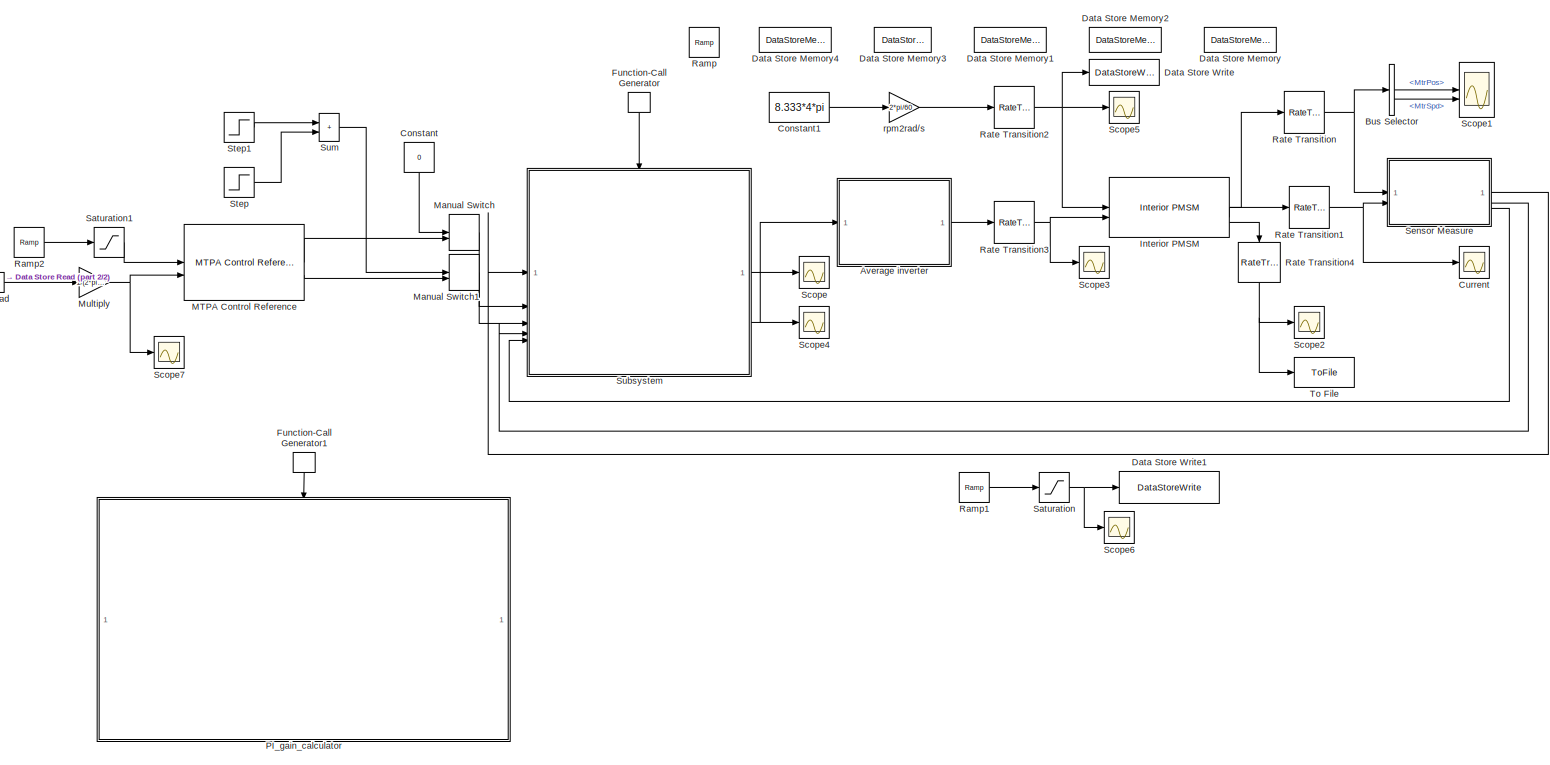
[diagram: root canvas - part 1/2, most of the canvas]
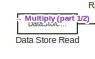
[diagram: root canvas - part 2/2, middle left region]
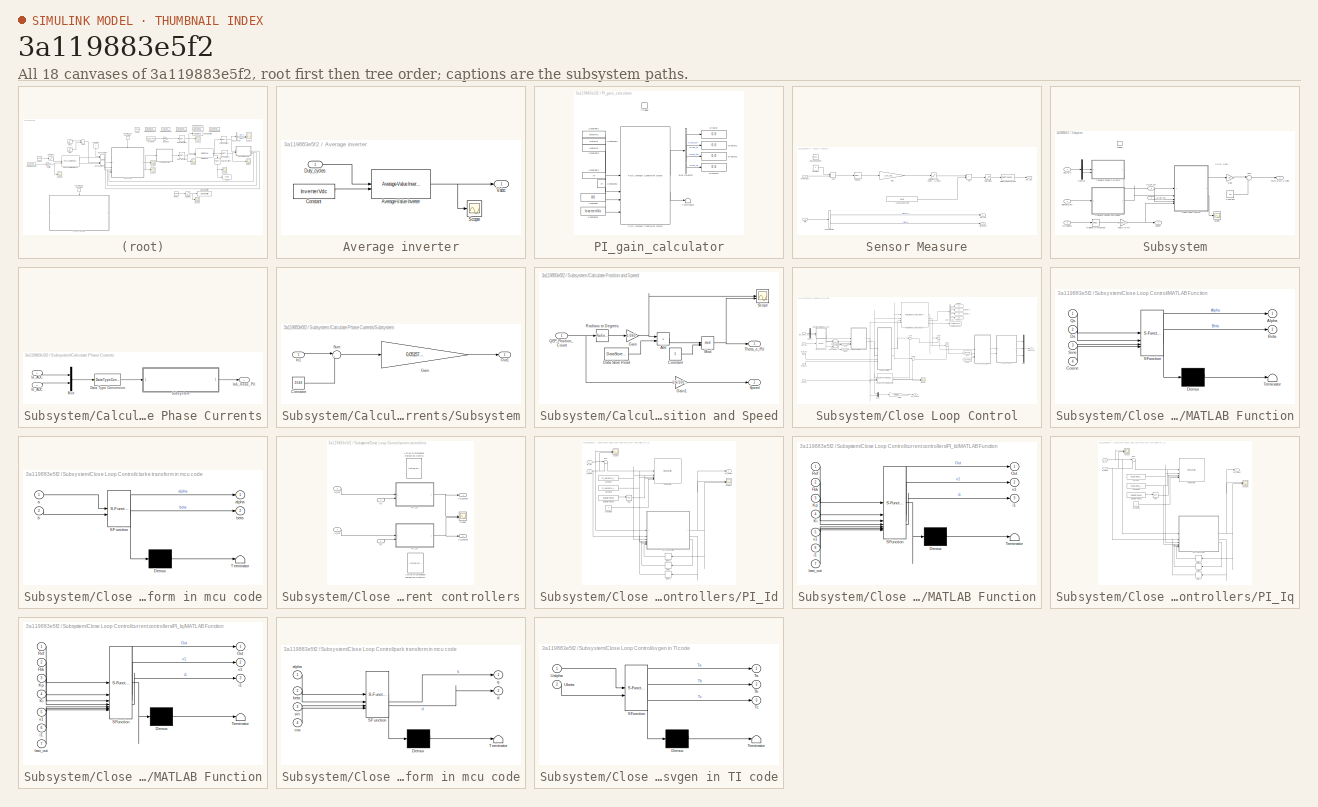
[diagram: thumbnail index - all 18 canvases of the model, root first then tree order]
MODEL slx_3a119883e5f2
KIND model
CONFIG AbsTol = auto
CONFIG EnableMultiTasking = off
CONFIG FixedStep = auto
CONFIG MaxStep = auto
CONFIG MinStep = auto
CONFIG RelTol = 1e-3
CONFIG SampleTimeConstraint = Unconstrained
CONFIG SolverName = VariableStepAuto
CONFIG StartTime = 0.0
CONFIG StopTime = 5
WORKSPACE source: mxarray member
WORKSPACE CT_AmpersPerLSB = 0.0515718
WORKSPACE InverterVdc = 600
WORKSPACE Max_ADC_CNT = 4096
WORKSPACE MotorBaseCurrent = 72
WORKSPACE MotorBaseSpeed = 13650
WORKSPACE MotorKe = 0.031
WORKSPACE MotorLamdaPM = 0.0427
WORKSPACE MotorLd = 0.000247
WORKSPACE MotorLq = 0.000371
WORKSPACE MotorPoles = 4
WORKSPACE MotorRs = 0.126
WORKSPACE PI_params_idKi = 29.1
WORKSPACE PI_params_idKp = 0.05704
WORKSPACE PI_params_iqKi = 29.1
WORKSPACE PI_params_iqKp = 0.08568
WORKSPACE Ts = 5e-05
BLOCK [SubSystem] Average inverter
BLOCK [Reference] Average inverter/Average-Value Inverter  REF=mcbplantlib/Average-Value Inverter
  LibrarySourceBlock = mcblib/Electrical Systems/Inverters/Average-Value Inverter
  SourceBlock = mcbplantlib/Average-Value Inverter
  SourceType = Average Value Inverter
BLOCK [Constant] Average inverter/Constant
  Value = InverterVdc
BLOCK [Inport] Average inverter/Duty_cycles
BLOCK [Scope] Average inverter/Scope
  ActiveDisplayYMaximum = 1
  ActiveDisplayYMinimum = -1
  DataLoggingVariableName = ScopeData6
  Floating = off
  GraphicalSettings = {"Style":{"BackgroundColor":[0.12941176470588237,0.12941176470588237,0.12941176470588237],"AxesColor":[0.07058823529411765,0.07058823529411765,0.07058823529411765],"LabelsColor":[0.8509803921568627,0.8509803921568627,0.8509803921568627],"PreserveColors":false,"Visible":[true,true,true],"LineStyle":["-","-","-"],"LineWidth":[1.5,1.5,1.5],"BarWidth":[0.9,0.9,0.9],"LineColor":["auto","auto","auto"],"...<+2271ch>
  MultipleDisplayCache = [{"MaxYLimMag":1,"MaxYLimReal":1,"MinYLimMag":0,"MinYLimReal":-1,"PlotAsMagnitudePhase":false,"ShowGrid":true,"ShowLegend":false,"Title":"%<SignalLabel>","YLabel":""}]
  NumInputPorts = 1
  ScopeFrameLocation = window
  WasSavedAsWebScope = on
  WindowPosition = [1.000000,1.000000,1536.000000,937.000000,]
BLOCK [Outport] Average inverter/Vabc
BLOCK [BusSelector] Bus Selector
  OutputSignals = MtrPos,MtrSpd
BLOCK [Constant] Constant
  NameLocation = left
  Value = 0
BLOCK [Constant] Constant1
  Value = 8.333*4*pi
BLOCK [Scope] Current
  ActiveDisplayYMaximum = 76.108864987111886
  ActiveDisplayYMinimum = -76.1277827871931
  DataLoggingVariableName = ScopeData7
  Floating = off
  GraphicalSettings = {"Style":{"BackgroundColor":[0.12941176470588237,0.12941176470588237,0.12941176470588237],"AxesColor":[0.07058823529411765,0.07058823529411765,0.07058823529411765],"LabelsColor":[0.8509803921568627,0.8509803921568627,0.8509803921568627],"PreserveColors":false,"Visible":[true,true,true],"LineStyle":["-","-","-"],"LineWidth":[1.5,1.5,1.5],"BarWidth":[0.9,0.9,0.9],"LineColor":["auto","auto","auto"],"...<+2284ch>
  MultipleDisplayCache = [{"MaxYLimMag":76.1277827871931,"MaxYLimReal":76.108864987111886,"MinYLimMag":0,"MinYLimReal":-76.1277827871931,"PlotAsMagnitudePhase":false,"ShowGrid":true,"ShowLegend":true,"Title":"%<SignalLabel>","YLabel":""}]
  NumInputPorts = 1
  ScopeFrameLocation = window
  ShowLegend = on
  WasSavedAsWebScope = on
  WindowPosition = [1.000000,1.000000,1536.000000,937.000000,]
BLOCK [DataStoreMemory] Data Store Memory
  DataStoreName = Enable
  InitialValue = 1
  OutDataTypeStr = boolean
  ShowAdditionalParam = off
  WriteAfterWriteMsg = warning
BLOCK [DataStoreMemory] Data Store Memory1
  DataStoreName = IaOffset
  OutDataTypeStr = boolean
  ShowAdditionalParam = off
  WriteAfterWriteMsg = warning
BLOCK [DataStoreMemory] Data Store Memory2
  DataStoreName = IbOffset
  OutDataTypeStr = boolean
  ShowAdditionalParam = off
  WriteAfterWriteMsg = warning
BLOCK [DataStoreMemory] Data Store Memory3
  DataStoreName = QEP_offset
  ShowAdditionalParam = off
  WriteAfterWriteMsg = warning
BLOCK [DataStoreMemory] Data Store Memory4
  DataLogging = on
  DataStoreName = motorSpeed
  ShowAdditionalParam = off
  WriteAfterWriteMsg = warning
BLOCK [DataStoreRead] Data Store Read
  DataStoreName = motorSpeed
  IndexOptions = Index vector (dialog)
  Indices = 1
  OutputSizes = 1
BLOCK [DataStoreWrite] Data Store Write
  DataStoreName = motorSpeed
  IndexOptions = Index vector (dialog)
  Indices = 1
  OutputSizes = 1
BLOCK [DataStoreWrite] Data Store Write1
  Commented = on
  DataStoreName = QEP_offset
  IndexOptions = Index vector (dialog)
  Indices = 1
  OutputSizes = 1
BLOCK [FunctionCallGenerator] Function-Call Generator
  NameLocation = left
  SampleTime = Ts
BLOCK [FunctionCallGenerator] Function-Call Generator1
  NameLocation = left
BLOCK [Reference] Interior PMSM  REF=autolibpmsminterior/Interior PMSM
  LibrarySourceBlock = mcblib/Electrical Systems/Motors/Interior PMSM
  SourceBlock = autolibpmsminterior/Interior PMSM
  SourceType = Interior PMSM
BLOCK [Reference] MTPA Control Reference  REF=mcbcontrolslib/MTPA Control Reference
  LibrarySourceBlock = mcblib/Controls/Control Reference/MTPA Control Reference
  SourceBlock = mcbcontrolslib/MTPA Control Reference
  SourceType = MTPA Control Reference
BLOCK [ManualSwitch] Manual Switch
BLOCK [ManualSwitch] Manual Switch1
BLOCK [Gain] Multiply
  Gain = 1/(2*pi/60*MotorBaseSpeed)
BLOCK [SubSystem] PI_gain_calculator
  Commented = on
BLOCK [BusSelector] PI_gain_calculator/Bus Selector
  OutputSignals = Daxis_Kp,Daxis_Ki,Qaxis_Kp,Qaxis_Ki
BLOCK [Constant] PI_gain_calculator/Constant
  Value = 80
BLOCK [Constant] PI_gain_calculator/Constant1
  Value = MotorRs
BLOCK [Constant] PI_gain_calculator/Constant2
  Value = MotorLd
BLOCK [Constant] PI_gain_calculator/Constant3
  Value = MotorLq
BLOCK [Constant] PI_gain_calculator/Constant4
  Value = Ts
  VectorParams1D = off
BLOCK [Constant] PI_gain_calculator/Constant5
  Value = InverterVdc
BLOCK [Constant] PI_gain_calculator/Constant6
  Value = 10
BLOCK [Display] PI_gain_calculator/Display
  Decimation = 1
BLOCK [Display] PI_gain_calculator/Display1
  Decimation = 1
BLOCK [Display] PI_gain_calculator/Display2
  Decimation = 1
BLOCK [Display] PI_gain_calculator/Display3
  Decimation = 1
BLOCK [Reference] PI_gain_calculator/FOC Default Controller Gains  REF=mcbcontrollergainlib/FOC Default Controller Gains
  LibrarySourceBlock = mcblib/Controls/Controllers/FOC Default Controller Gains
  SourceBlock = mcbcontrollergainlib/FOC Default Controller Gains
  SourceType = FOC Default Controller Gains
BLOCK [Terminator] PI_gain_calculator/Terminator
BLOCK [TriggerPort] PI_gain_calculator/Trigger
  PortDimensions = 1
  StatesWhenEnabling = held
  TriggerType = function-call
  VariantControl = (inherit)
BLOCK [Reference] Ramp  REF=simulink/Sources/Ramp
  SourceBlock = simulink/Sources/Ramp
  SourceType = Ramp
BLOCK [Reference] Ramp1  REF=simulink/Sources/Ramp
  Commented = on
  SourceBlock = simulink/Sources/Ramp
  SourceType = Ramp
BLOCK [Reference] Ramp2  REF=simulink/Sources/Ramp
  SourceBlock = simulink/Sources/Ramp
  SourceType = Ramp
BLOCK [RateTransition] Rate Transition
BLOCK [RateTransition] Rate Transition1
BLOCK [RateTransition] Rate Transition2
BLOCK [RateTransition] Rate Transition3
BLOCK [RateTransition] Rate Transition4
  NameLocation = left
  OutPortSampleTime = Ts
BLOCK [Saturate] Saturation
  Commented = on
  LowerLimit = 0
  UpperLimit = 1
BLOCK [Saturate] Saturation1
  LowerLimit = 0
  UpperLimit = 1
BLOCK [Scope] Scope
  ActiveDisplayYMaximum = 0.92876461293870616
  ActiveDisplayYMinimum = 0.071235387061293814
  Floating = off
  GraphicalSettings = {"AxesScalingProperties":{"AlignXAxis":"Center","AlignYAxis":"Center","AutoScaleXAxisLimits":false,"AxesScaling":"Manual","AxesScalingNumUpdates":10,"ExpandOnly":true,"ScaleAxesLimitsAtStop":false,"XAxisDataRange":100,"YAxisDataRange":80},"DisplayProperties":{"ColorOrder":["auto","auto","auto","auto","auto","auto","auto","auto","auto","auto","auto","auto","auto","auto","auto","auto","auto","auto",...<+2282ch>
  MultipleDisplayCache = [{"MaxYLimMag":0.92876461293870616,"MaxYLimReal":0.92876461293870616,"MinYLimMag":0.071235387061293814,"MinYLimReal":0.071235387061293814,"PlotAsMagnitudePhase":false,"ShowGrid":true,"ShowLegend":true,"Title":"%<SignalLabel>","YLabel":""}]
  NumInputPorts = 1
  ScopeFrameLocation = window
  ShowLegend = on
  WasSavedAsWebScope = on
  WindowPosition = [0.000000,12.000000,1536.000000,937.000000,]
BLOCK [Scope] Scope1
  ActiveDisplayYMaximum = 1
  ActiveDisplayYMinimum = -1
  DataLoggingVariableName = ScopeData1
  Floating = off
  GraphicalSettings = {"Style":{"BackgroundColor":[0.12941176470588237,0.12941176470588237,0.12941176470588237],"AxesColor":[0.07058823529411765,0.07058823529411765,0.07058823529411765],"LabelsColor":[0.8509803921568627,0.8509803921568627,0.8509803921568627],"PreserveColors":false,"Visible":[true,true],"LineStyle":["-","-"],"LineWidth":[1.5,1.5],"BarWidth":[0.9,0.9],"LineColor":["auto","auto"],"LineFaceAlpha":[1,1],"Li...<+2490ch>
  MultipleDisplayCache = [{"MaxYLimMag":1,"MaxYLimReal":1,"MinYLimMag":0,"MinYLimReal":-1,"PlotAsMagnitudePhase":false,"ShowGrid":true,"ShowLegend":true,"Title":"%<SignalLabel>","YLabel":""}]
  NumInputPorts = 2
  ScopeFrameLocation = window
  ShowLegend = on
  WasSavedAsWebScope = on
  WindowPosition = [1.000000,1.000000,1536.000000,937.000000,]
BLOCK [Scope] Scope2
  ActiveDisplayYMaximum = 21.52402585213785
  ActiveDisplayYMinimum = -3.2322259453035684
  DataLoggingVariableName = ScopeData2
  Floating = off
  GraphicalSettings = {"Style":{"BackgroundColor":[0.12941176470588237,0.12941176470588237,0.12941176470588237],"AxesColor":[0.07058823529411765,0.07058823529411765,0.07058823529411765],"LabelsColor":[0.8509803921568627,0.8509803921568627,0.8509803921568627],"PreserveColors":false,"Visible":[true],"LineStyle":["-"],"LineWidth":[1.5],"BarWidth":[0.9],"LineColor":["auto"],"LineFaceAlpha":[1],"LineEdgeAlpha":[1],"Marker":...<+2261ch>
  MultipleDisplayCache = [{"MaxYLimMag":21.52402585213785,"MaxYLimReal":21.52402585213785,"MinYLimMag":0,"MinYLimReal":-3.2322259453035684,"PlotAsMagnitudePhase":false,"ShowGrid":true,"ShowLegend":false,"Title":"%<SignalLabel>","YLabel":""}]
  NumInputPorts = 1
  ScopeFrameLocation = window
  WasSavedAsWebScope = on
  WindowPosition = [1.000000,1.000000,1536.000000,937.000000,]
BLOCK [Scope] Scope3
  ActiveDisplayYMaximum = 123.78875968992247
  ActiveDisplayYMinimum = -151.16279069767438
  DataLoggingVariableName = ScopeData3
  Floating = off
  GraphicalSettings = {"Style":{"BackgroundColor":[0.12941176470588237,0.12941176470588237,0.12941176470588237],"AxesColor":[0.07058823529411765,0.07058823529411765,0.07058823529411765],"LabelsColor":[0.8509803921568627,0.8509803921568627,0.8509803921568627],"PreserveColors":false,"Visible":[true,true,true],"LineStyle":["-","-","-"],"LineWidth":[1.5,1.5,1.5],"BarWidth":[0.9,0.9,0.9],"LineColor":["auto","auto","auto"],"...<+2294ch>
  MultipleDisplayCache = [{"MaxYLimMag":500.00000000000006,"MaxYLimReal":123.78875968992247,"MinYLimMag":0,"MinYLimReal":-151.16279069767438,"PlotAsMagnitudePhase":false,"ShowGrid":true,"ShowLegend":true,"Title":"%<SignalLabel>","YLabel":""}]
  NumInputPorts = 1
  ScopeFrameLocation = window
  ShowLegend = on
  WasSavedAsWebScope = on
  WindowPosition = [0.000000,12.000000,1536.000000,937.000000,]
BLOCK [Scope] Scope4
  ActiveDisplayYMaximum = 1
  ActiveDisplayYMinimum = -1
  DataLoggingVariableName = ScopeData2
  Floating = off
  GraphicalSettings = {"Style":{"BackgroundColor":[0.12941176470588237,0.12941176470588237,0.12941176470588237],"AxesColor":[0.07058823529411765,0.07058823529411765,0.07058823529411765],"LabelsColor":[0.8509803921568627,0.8509803921568627,0.8509803921568627],"PreserveColors":false,"Visible":[true],"LineStyle":["-"],"LineWidth":[1.5],"BarWidth":[0.9],"LineColor":["auto"],"LineFaceAlpha":[1],"LineEdgeAlpha":[1],"Marker":...<+1906ch>
  MultipleDisplayCache = [{"MaxYLimMag":1,"MaxYLimReal":1,"MinYLimMag":0,"MinYLimReal":-1,"PlotAsMagnitudePhase":false,"ShowGrid":true,"ShowLegend":false,"Title":"%<SignalLabel>","YLabel":""}]
  NumInputPorts = 1
  ScopeFrameLocation = window
  WasSavedAsWebScope = on
  WindowPosition = [488.000000,270.000000,560.000000,420.000000,]
BLOCK [Scope] Scope5
  ActiveDisplayYMaximum = 20.965788463237015
  ActiveDisplayYMinimum = 0.96578846323701484
  DataLoggingVariableName = ScopeData9
  Floating = off
  GraphicalSettings = {"Style":{"BackgroundColor":[0.12941176470588237,0.12941176470588237,0.12941176470588237],"AxesColor":[0.07058823529411765,0.07058823529411765,0.07058823529411765],"LabelsColor":[0.8509803921568627,0.8509803921568627,0.8509803921568627],"PreserveColors":false,"Visible":[true],"LineStyle":["-"],"LineWidth":[1.5],"BarWidth":[0.9],"LineColor":["auto"],"LineFaceAlpha":[1],"LineEdgeAlpha":[1],"Marker":...<+2201ch>
  MultipleDisplayCache = [{"MaxYLimMag":20.965788463237015,"MaxYLimReal":20.965788463237015,"MinYLimMag":0.96578846323701484,"MinYLimReal":0.96578846323701484,"PlotAsMagnitudePhase":false,"ShowGrid":true,"ShowLegend":false,"Title":"%<SignalLabel>","YLabel":""}]
  NumInputPorts = 1
  ScopeFrameLocation = window
  WasSavedAsWebScope = on
  WindowPosition = [488.000000,270.000000,560.000000,420.000000,]
BLOCK [Scope] Scope6
  ActiveDisplayYMaximum = 0.35025
  ActiveDisplayYMinimum = 0.22775000000000004
  Commented = on
  DataLoggingVariableName = ScopeData15
  Floating = off
  GraphicalSettings = {"Style":{"BackgroundColor":[0.12941176470588237,0.12941176470588237,0.12941176470588237],"AxesColor":[0.07058823529411765,0.07058823529411765,0.07058823529411765],"LabelsColor":[0.8509803921568627,0.8509803921568627,0.8509803921568627],"PreserveColors":false,"Visible":[true],"LineStyle":["-"],"LineWidth":[1.5],"BarWidth":[0.9],"LineColor":["auto"],"LineFaceAlpha":[1],"LineEdgeAlpha":[1],"Marker":...<+2526ch>
  MultipleDisplayCache = [{"MaxYLimMag":0.35025,"MaxYLimReal":0.35025,"MinYLimMag":0.22775000000000004,"MinYLimReal":0.22775000000000004,"PlotAsMagnitudePhase":false,"ShowGrid":true,"ShowLegend":false,"Title":"%<SignalLabel>","YLabel":""}]
  NumInputPorts = 1
  ScopeFrameLocation = window
  WasSavedAsWebScope = on
  WindowPosition = [1.000000,1.000000,1536.000000,937.000000,]
BLOCK [Scope] Scope7
  ActiveDisplayYMaximum = 0.0020965788463237016
  ActiveDisplayYMinimum = 9.65788463237016E-5
  DataLoggingVariableName = ScopeData2
  Floating = off
  GraphicalSettings = {"Style":{"BackgroundColor":[0.12941176470588237,0.12941176470588237,0.12941176470588237],"AxesColor":[0.07058823529411765,0.07058823529411765,0.07058823529411765],"LabelsColor":[0.8509803921568627,0.8509803921568627,0.8509803921568627],"PreserveColors":false,"Visible":[true],"LineStyle":["-"],"LineWidth":[1.5],"BarWidth":[0.9],"LineColor":["auto"],"LineFaceAlpha":[1],"LineEdgeAlpha":[1],"Marker":...<+1900ch>
  MultipleDisplayCache = [{"MaxYLimMag":0.0020965788463237016,"MaxYLimReal":0.0020965788463237016,"MinYLimMag":9.65788463237016E-5,"MinYLimReal":9.65788463237016E-5,"PlotAsMagnitudePhase":false,"ShowGrid":true,"ShowLegend":false,"Title":"%<SignalLabel>","YLabel":""}]
  NumInputPorts = 1
  ScopeFrameLocation = window
  WasSavedAsWebScope = on
  WindowPosition = [1.000000,1.000000,1536.000000,937.000000,]
BLOCK [SubSystem] Sensor Measure
BLOCK [Sum] Sensor Measure/Add
  IconShape = rectangular
BLOCK [Sum] Sensor Measure/Add1
  IconShape = rectangular
BLOCK [BusSelector] Sensor Measure/Bus Selector
  OutputSignals = MtrElcPos,MtrSpd
BLOCK [Constant] Sensor Measure/Constant
  Value = 0
BLOCK [DataTypeConversion] Sensor Measure/Data Type Conversion
  OutDataTypeStr = uint16
  RndMeth = Floor
  SaturateOnIntegerOverflow = off
BLOCK [Outport] Sensor Measure/EleTheta
  Port = 2
BLOCK [Gain] Sensor Measure/Gain
  Gain = 1/CT_AmpersPerLSB
BLOCK [Outport] Sensor Measure/Iab_ADC
BLOCK [Saturate] Sensor Measure/Limit: -Max_ADC_CNT//2~Max_ADC_CNT//2
  LowerLimit = -Max_ADC_CNT/2
  UpperLimit = Max_ADC_CNT/2
BLOCK [Inport] Sensor Measure/PhaseCurr
  Port = 2
BLOCK [RandomNumber] Sensor Measure/Random Number
  SampleTime = 0.00002
  Variance = 0.1
BLOCK [Saturate] Sensor Measure/Saturation1
  LowerLimit = 0
  UpperLimit = Max_ADC_CNT
BLOCK [Selector] Sensor Measure/Selector
  IndexOptions = Index vector (dialog)
  Indices = [1 2]
  InputPortWidth = 3
  OutputSizes = 1
  RuntimeRangeChecks = on
BLOCK [Inport] Sensor Measure/info
BLOCK [Outport] Sensor Measure/mtrSpeed
  Port = 3
BLOCK [Constant] Sensor Measure/~1.65V in ADC counts
  Value = 2048
BLOCK [Step] Step
  After = -1
  SampleTime = 0
BLOCK [Step] Step1
  SampleTime = 0
  Time = 0.1
BLOCK [SubSystem] Subsystem
BLOCK [SubSystem] Subsystem/Calculate Phase Currents
BLOCK [DataTypeConversion] Subsystem/Calculate Phase Currents/Data Type Conversion
  OutDataTypeStr = single
  RndMeth = Floor
BLOCK [Inport] Subsystem/Calculate Phase Currents/Ia_ADC
BLOCK [Outport] Subsystem/Calculate Phase Currents/Iab_meas_PU
BLOCK [Inport] Subsystem/Calculate Phase Currents/Ib_ADC
  Port = 2
BLOCK [Mux] Subsystem/Calculate Phase Currents/Mux
  DisplayOption = bar
  Inputs = 2
BLOCK [SubSystem] Subsystem/Calculate Phase Currents/Subsystem
BLOCK [Constant] Subsystem/Calculate Phase Currents/Subsystem/Constant
  Value = 2048
BLOCK [Gain] Subsystem/Calculate Phase Currents/Subsystem/Gain
  Gain = 0.0515718/MotorBaseCurrent
  OutDataTypeStr = Inherit: Same as input
BLOCK [Inport] Subsystem/Calculate Phase Currents/Subsystem/In1
BLOCK [Outport] Subsystem/Calculate Phase Currents/Subsystem/Out1
BLOCK [Sum] Subsystem/Calculate Phase Currents/Subsystem/Sum
  Inputs = |+-
BLOCK [SubSystem] Subsystem/Calculate Position and Speed
BLOCK [Sum] Subsystem/Calculate Position and Speed/Add
  IconShape = rectangular
BLOCK [Constant] Subsystem/Calculate Position and Speed/Constant
BLOCK [DataStoreRead] Subsystem/Calculate Position and Speed/Data Store Read
  DataStoreName = QEP_offset
  IndexOptions = Index vector (dialog)
  Indices = 1
  OutputSizes = 1
BLOCK [Gain] Subsystem/Calculate Position and Speed/Gain
  Gain = 1/360
BLOCK [Gain] Subsystem/Calculate Position and Speed/Gain1
  Gain = 1/6/10000
BLOCK [Math] Subsystem/Calculate Position and Speed/Mod
  Operator = mod
BLOCK [Inport] Subsystem/Calculate Position and Speed/QEP_Position_Count
BLOCK [Reference] Subsystem/Calculate Position and Speed/Radians to Degrees  REF=simulink_extras/Transformations/Radians
to Degrees
  SourceBlock = simulink_extras/Transformations/Radians\nto Degrees
  SourceType = RadiansToDegrees
BLOCK [Scope] Subsystem/Calculate Position and Speed/Scope
  ActiveDisplayYMaximum = 1.1249847000009228
  ActiveDisplayYMinimum = -0.12499830000010251
  DataLoggingVariableName = ScopeData1
  Floating = off
  GraphicalSettings = {"Style":{"BackgroundColor":[0.12941176470588237,0.12941176470588237,0.12941176470588237],"AxesColor":[0.07058823529411765,0.07058823529411765,0.07058823529411765],"LabelsColor":[0.8509803921568627,0.8509803921568627,0.8509803921568627],"PreserveColors":false,"Visible":[true,true],"LineStyle":["-","-"],"LineWidth":[1.5,1.5],"BarWidth":[0.9,0.9],"LineColor":["auto","auto"],"LineFaceAlpha":[1,1],"Li...<+2104ch>
  MultipleDisplayCache = [{"MaxYLimMag":1.1249847000009228,"MaxYLimReal":1.1249847000009228,"MinYLimMag":0,"MinYLimReal":-0.12499830000010251,"PlotAsMagnitudePhase":false,"ShowGrid":true,"ShowLegend":true,"Title":"%<SignalLabel>","YLabel":""}]
  NumInputPorts = 2
  ScopeFrameLocation = window
  ShowLegend = on
  WasSavedAsWebScope = on
  WindowPosition = [1.000000,1.000000,1536.000000,937.000000,]
BLOCK [Outport] Subsystem/Calculate Position and Speed/Speed
  Port = 2
BLOCK [Outport] Subsystem/Calculate Position and Speed/Theta_e_PU
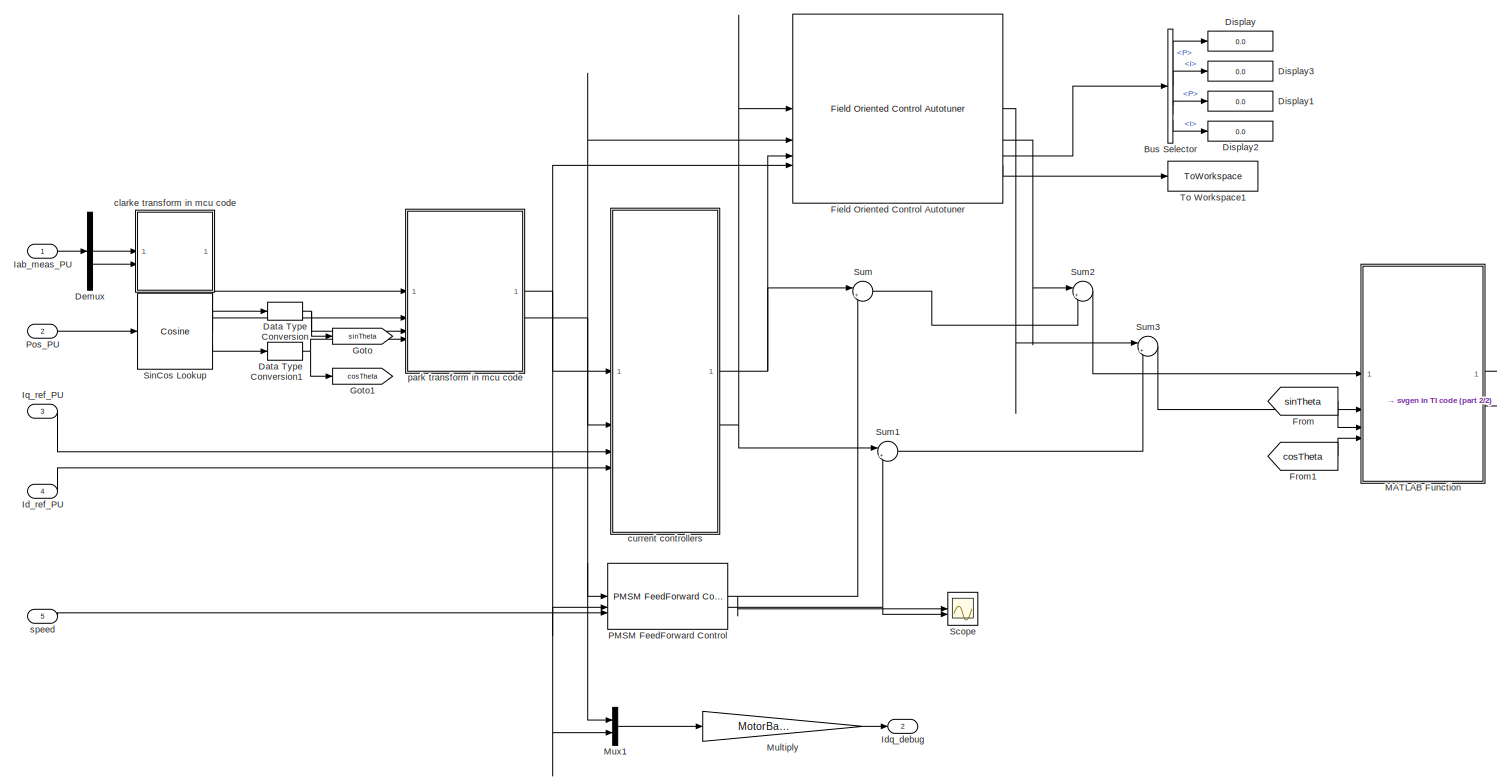
[diagram: Subsystem/Close Loop Control - part 1/2, most of the canvas]
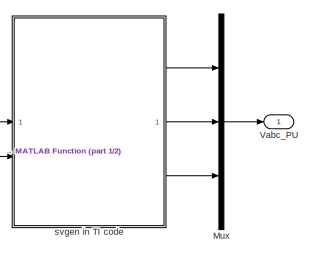
[diagram: Subsystem/Close Loop Control - part 2/2, middle right region]
BLOCK [SubSystem] Subsystem/Close Loop Control
BLOCK [BusSelector] Subsystem/Close Loop Control/Bus Selector
  Commented = on
  OutputSignals = daxis_gains.P,daxis_gains.I,qaxis_gains.P,qaxis_gains.I
BLOCK [DataTypeConversion] Subsystem/Close Loop Control/Data Type Conversion
  OutDataTypeStr = double
  RndMeth = Floor
  SaturateOnIntegerOverflow = off
BLOCK [DataTypeConversion] Subsystem/Close Loop Control/Data Type Conversion1
  OutDataTypeStr = double
  RndMeth = Floor
  SaturateOnIntegerOverflow = off
BLOCK [Demux] Subsystem/Close Loop Control/Demux
  Outputs = 2
BLOCK [Display] Subsystem/Close Loop Control/Display
  Commented = on
  Decimation = 1
BLOCK [Display] Subsystem/Close Loop Control/Display1
  Commented = on
  Decimation = 1
BLOCK [Display] Subsystem/Close Loop Control/Display2
  Commented = on
  Decimation = 1
BLOCK [Display] Subsystem/Close Loop Control/Display3
  Commented = on
  Decimation = 1
BLOCK [Reference] Subsystem/Close Loop Control/Field Oriented Control Autotuner  REF=focautotunershared/Field Oriented Control Autotuner
  Commented = on
  LibrarySourceBlock = mcblib/Controls/Controllers/Field Oriented Control Autotuner
  SourceBlock = focautotunershared/Field Oriented Control Autotuner
  SourceType = FOCAutoTuner
BLOCK [From] Subsystem/Close Loop Control/From
  GotoTag = sinTheta
BLOCK [From] Subsystem/Close Loop Control/From1
  GotoTag = cosTheta
BLOCK [Goto] Subsystem/Close Loop Control/Goto
  GotoTag = sinTheta
BLOCK [Goto] Subsystem/Close Loop Control/Goto1
  GotoTag = cosTheta
BLOCK [Inport] Subsystem/Close Loop Control/Iab_meas_PU
BLOCK [Inport] Subsystem/Close Loop Control/Id_ref_PU
  Port = 4
BLOCK [Outport] Subsystem/Close Loop Control/Idq_debug
  Port = 2
BLOCK [Inport] Subsystem/Close Loop Control/Iq_ref_PU
  Port = 3
BLOCK [SubSystem] Subsystem/Close Loop Control/MATLAB Function
  ErrorFcn = Stateflow.Translate.translate
  PermitHierarchicalResolution = ExplicitOnly
  SFBlockType = MATLAB Function
  TreatAsAtomicUnit = on
BLOCK [Demux] Subsystem/Close Loop Control/MATLAB Function/ Demux 
  Outputs = 1
BLOCK [S-Function] Subsystem/Close Loop Control/MATLAB Function/ SFunction 
  EnableBusSupport = off
  FunctionName = sf_sfun
  PortCounts = [4 3]
  SFcnIsStateOwnerBlock = off
  SFunctionDeploymentMode = off
  Tag = Stateflow S-Function 4
BLOCK [Terminator] Subsystem/Close Loop Control/MATLAB Function/ Terminator 
BLOCK [Outport] Subsystem/Close Loop Control/MATLAB Function/Alpha
BLOCK [Outport] Subsystem/Close Loop Control/MATLAB Function/Beta
  Port = 2
BLOCK [Inport] Subsystem/Close Loop Control/MATLAB Function/Cosine
  Port = 4
BLOCK [Inport] Subsystem/Close Loop Control/MATLAB Function/Ds
  Port = 2
BLOCK [Inport] Subsystem/Close Loop Control/MATLAB Function/Qs
BLOCK [Inport] Subsystem/Close Loop Control/MATLAB Function/Sine
  Port = 3
BLOCK [Gain] Subsystem/Close Loop Control/Multiply
  Gain = MotorBaseCurrent
BLOCK [Mux] Subsystem/Close Loop Control/Mux
  DisplayOption = bar
  Inputs = 3
BLOCK [Mux] Subsystem/Close Loop Control/Mux1
  DisplayOption = bar
  Inputs = 2
BLOCK [Reference] Subsystem/Close Loop Control/PMSM FeedForward Control  REF=mcbpmsmnonlinearlib/PMSM FeedForward Control
  Commented = on
  LibrarySourceBlock = mcblib/Controls/Control Reference/PMSM FeedForward Control
  SourceBlock = mcbpmsmnonlinearlib/PMSM FeedForward Control
  SourceType = PMSM FeedForward Control
BLOCK [Inport] Subsystem/Close Loop Control/Pos_PU
  Port = 2
BLOCK [Scope] Subsystem/Close Loop Control/Scope
  ActiveDisplayYMaximum = 0.8196661775127303
  ActiveDisplayYMinimum = -0.41345157697375318
  DataLoggingVariableName = ScopeData11
  Floating = off
  GraphicalSettings = {"Style":{"BackgroundColor":[0.12941176470588237,0.12941176470588237,0.12941176470588237],"AxesColor":[0.07058823529411765,0.07058823529411765,0.07058823529411765],"LabelsColor":[0.8509803921568627,0.8509803921568627,0.8509803921568627],"PreserveColors":false,"Visible":[true,true],"LineStyle":["-","-"],"LineWidth":[1.5,1.5],"BarWidth":[0.9,0.9],"LineColor":["auto","auto"],"LineFaceAlpha":[1,1],"Li...<+2228ch>
  MultipleDisplayCache = [{"MaxYLimMag":0.8196661775127303,"MaxYLimReal":0.8196661775127303,"MinYLimMag":0,"MinYLimReal":-0.41345157697375318,"PlotAsMagnitudePhase":false,"ShowGrid":true,"ShowLegend":true,"Title":"%<SignalLabel>","YLabel":""}]
  NumInputPorts = 2
  ScopeFrameLocation = window
  ShowLegend = on
  WasSavedAsWebScope = on
  WindowPosition = [0.000000,12.000000,1536.000000,937.000000,]
BLOCK [Reference] Subsystem/Close Loop Control/SinCos Lookup  REF=simulink/Lookup
Tables/Cosine
  LibrarySourceBlock = simulink/Quick Insert/Lookup\nTables/SinCos Lookup
  SourceBlock = simulink/Lookup\nTables/Cosine
  SourceType = Sine and Cosine
BLOCK [Sum] Subsystem/Close Loop Control/Sum
  Inputs = |++
BLOCK [Sum] Subsystem/Close Loop Control/Sum1
  Inputs = |++
BLOCK [Sum] Subsystem/Close Loop Control/Sum2
  Inputs = |++
BLOCK [Sum] Subsystem/Close Loop Control/Sum3
  Inputs = |++
BLOCK [ToWorkspace] Subsystem/Close Loop Control/To Workspace1
  FixptAsFi = on
  MaxDataPoints = inf
  SampleTime = -1
  SaveFormat = Timeseries
  VariableName = convergence
BLOCK [Outport] Subsystem/Close Loop Control/Vabc_PU
BLOCK [SubSystem] Subsystem/Close Loop Control/clarke transform in mcu code
  ErrorFcn = Stateflow.Translate.translate
  PermitHierarchicalResolution = ExplicitOnly
  SFBlockType = MATLAB Function
  TreatAsAtomicUnit = on
BLOCK [Demux] Subsystem/Close Loop Control/clarke transform in mcu code/ Demux 
  Outputs = 1
BLOCK [S-Function] Subsystem/Close Loop Control/clarke transform in mcu code/ SFunction 
  EnableBusSupport = off
  FunctionName = sf_sfun
  PortCounts = [2 3]
  SFcnIsStateOwnerBlock = off
  SFunctionDeploymentMode = off
  Tag = Stateflow S-Function 1
BLOCK [Terminator] Subsystem/Close Loop Control/clarke transform in mcu code/ Terminator 
BLOCK [Inport] Subsystem/Close Loop Control/clarke transform in mcu code/a
BLOCK [Outport] Subsystem/Close Loop Control/clarke transform in mcu code/alpha
BLOCK [Inport] Subsystem/Close Loop Control/clarke transform in mcu code/b
  Port = 2
BLOCK [Outport] Subsystem/Close Loop Control/clarke transform in mcu code/beta
  Port = 2
BLOCK [SubSystem] Subsystem/Close Loop Control/current controllers
BLOCK [Reference] Subsystem/Close Loop Control/current controllers/Active Disturbance Rejection Control  REF=slctrl_adaptive/Active Disturbance Rejection Control
  Commented = on
  LibrarySourceBlock = slctrlblks/Adaptive Control/Active Disturbance Rejection Control
  SourceBlock = slctrl_adaptive/Active Disturbance Rejection Control
  SourceType = Active Disturbance Rejection Control (ADRC)
BLOCK [Reference] Subsystem/Close Loop Control/current controllers/Active Disturbance Rejection Control1  REF=slctrl_adaptive/Active Disturbance Rejection Control
  Commented = on
  LibrarySourceBlock = slctrlblks/Adaptive Control/Active Disturbance Rejection Control
  SourceBlock = slctrl_adaptive/Active Disturbance Rejection Control
  SourceType = Active Disturbance Rejection Control (ADRC)
BLOCK [Inport] Subsystem/Close Loop Control/current controllers/Id
  Port = 2
BLOCK [Inport] Subsystem/Close Loop Control/current controllers/Id_ref
  Port = 4
BLOCK [Inport] Subsystem/Close Loop Control/current controllers/Iq
BLOCK [Inport] Subsystem/Close Loop Control/current controllers/Iq_ref
  Port = 3
BLOCK [SubSystem] Subsystem/Close Loop Control/current controllers/PI_Id
BLOCK [Constant] Subsystem/Close Loop Control/current controllers/PI_Id/Constant
  Value = PI_params_idKp
BLOCK [Constant] Subsystem/Close Loop Control/current controllers/PI_Id/Constant1
  Value = PI_params_idKi*Ts/PI_params_idKp
BLOCK [Constant] Subsystem/Close Loop Control/current controllers/PI_Id/Constant2
  Value = 0
BLOCK [DataStoreRead] Subsystem/Close Loop Control/current controllers/PI_Id/Data Store Read
  DataStoreName = Enable
  IndexOptions = Index vector (dialog)
  Indices = 1
  OutputSizes = 1
BLOCK [Delay] Subsystem/Close Loop Control/current controllers/PI_Id/Delay
  DelayLength = 1
  InputPortMap = u0
  InputProcessing = Columns as channels (frame based)
  NameLocation = top
BLOCK [Delay] Subsystem/Close Loop Control/current controllers/PI_Id/Delay1
  DelayLength = 1
  InputPortMap = u0
  InputProcessing = Columns as channels (frame based)
  NameLocation = top
BLOCK [Delay] Subsystem/Close Loop Control/current controllers/PI_Id/Delay2
  DelayLength = 1
  InputPortMap = u0
  InputProcessing = Columns as channels (frame based)
  NameLocation = top
BLOCK [Inport] Subsystem/Close Loop Control/current controllers/PI_Id/Id_meas
  Port = 2
BLOCK [Inport] Subsystem/Close Loop Control/current controllers/PI_Id/Id_ref
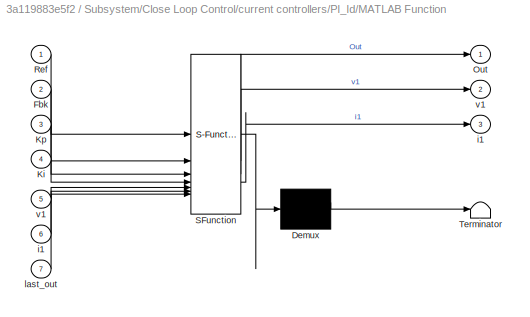
BLOCK [SubSystem] Subsystem/Close Loop Control/current controllers/PI_Id/MATLAB Function
  ErrorFcn = Stateflow.Translate.translate
  PermitHierarchicalResolution = ExplicitOnly
  SFBlockType = MATLAB Function
  TreatAsAtomicUnit = on
BLOCK [Demux] Subsystem/Close Loop Control/current controllers/PI_Id/MATLAB Function/ Demux 
  Outputs = 1
BLOCK [S-Function] Subsystem/Close Loop Control/current controllers/PI_Id/MATLAB Function/ SFunction 
  EnableBusSupport = off
  FunctionName = sf_sfun
  PortCounts = [7 4]
  SFcnIsStateOwnerBlock = off
  SFunctionDeploymentMode = off
  Tag = Stateflow S-Function 6
BLOCK [Terminator] Subsystem/Close Loop Control/current controllers/PI_Id/MATLAB Function/ Terminator 
BLOCK [Inport] Subsystem/Close Loop Control/current controllers/PI_Id/MATLAB Function/Fbk
  Port = 2
BLOCK [Inport] Subsystem/Close Loop Control/current controllers/PI_Id/MATLAB Function/Ki
  Port = 4
BLOCK [Inport] Subsystem/Close Loop Control/current controllers/PI_Id/MATLAB Function/Kp
  Port = 3
BLOCK [Outport] Subsystem/Close Loop Control/current controllers/PI_Id/MATLAB Function/Out
BLOCK [Inport] Subsystem/Close Loop Control/current controllers/PI_Id/MATLAB Function/Ref
BLOCK [Outport] Subsystem/Close Loop Control/current controllers/PI_Id/MATLAB Function/i1
  Port = 3
BLOCK [Inport] Subsystem/Close Loop Control/current controllers/PI_Id/MATLAB Function/i1 
  Port = 6
BLOCK [Inport] Subsystem/Close Loop Control/current controllers/PI_Id/MATLAB Function/last_out
  Port = 7
BLOCK [Outport] Subsystem/Close Loop Control/current controllers/PI_Id/MATLAB Function/v1
  Port = 2
BLOCK [Inport] Subsystem/Close Loop Control/current controllers/PI_Id/MATLAB Function/v1 
  Port = 5
BLOCK [Logic] Subsystem/Close Loop Control/current controllers/PI_Id/NOT
  AllPortsSameDT = off
  IconShape = distinctive
  Operator = NOT
  OutDataTypeStr = boolean
BLOCK [Reference] Subsystem/Close Loop Control/current controllers/PI_Id/PI Controller  REF=slpidlib/PID Controller
  SourceBlock = slpidlib/PID Controller
  SourceType = PID 1dof
BLOCK [Scope] Subsystem/Close Loop Control/current controllers/PI_Id/Scope
  ActiveDisplayYMaximum = 1
  ActiveDisplayYMinimum = -1
  DataLoggingVariableName = ScopeData10
  Floating = off
  GraphicalSettings = {"Style":{"BackgroundColor":[0.12941176470588237,0.12941176470588237,0.12941176470588237],"AxesColor":[0.07058823529411765,0.07058823529411765,0.07058823529411765],"LabelsColor":[0.8509803921568627,0.8509803921568627,0.8509803921568627],"PreserveColors":false,"Visible":[true,true],"LineStyle":["-","-"],"LineWidth":[1.5,1.5],"BarWidth":[0.9,0.9],"LineColor":["auto","auto"],"LineFaceAlpha":[1,1],"Li...<+2009ch>
  MultipleDisplayCache = [{"MaxYLimMag":1,"MaxYLimReal":1,"MinYLimMag":0,"MinYLimReal":-1,"PlotAsMagnitudePhase":false,"ShowGrid":true,"ShowLegend":true,"Title":"%<SignalLabel>","YLabel":""}]
  NumInputPorts = 2
  ScopeFrameLocation = window
  ShowLegend = on
  WasSavedAsWebScope = on
  WindowPosition = [1.000000,1.000000,1536.000000,937.000000,]
BLOCK [Scope] Subsystem/Close Loop Control/current controllers/PI_Id/Scope1
  DataLoggingVariableName = ScopeData13
  Floating = off
  GraphicalSettings = {"GraphicalSettings":{"LegacySettings":true,"Style":{"Style":{"PlotType":"Auto"}}}}
  NumInputPorts = 2
  WasSavedAsWebScope = on
BLOCK [Sum] Subsystem/Close Loop Control/current controllers/PI_Id/Sum
  Inputs = |+-
BLOCK [Outport] Subsystem/Close Loop Control/current controllers/PI_Id/Vd_output
BLOCK [SubSystem] Subsystem/Close Loop Control/current controllers/PI_Iq
BLOCK [Constant] Subsystem/Close Loop Control/current controllers/PI_Iq/Constant
  Value = PI_params_iqKp
BLOCK [Constant] Subsystem/Close Loop Control/current controllers/PI_Iq/Constant1
  Value = PI_params_iqKi*Ts/PI_params_iqKp
BLOCK [Constant] Subsystem/Close Loop Control/current controllers/PI_Iq/Constant2
  Value = 0
BLOCK [DataStoreRead] Subsystem/Close Loop Control/current controllers/PI_Iq/Data Store Read
  DataStoreName = Enable
  IndexOptions = Index vector (dialog)
  Indices = 1
  OutputSizes = 1
BLOCK [Delay] Subsystem/Close Loop Control/current controllers/PI_Iq/Delay
  DelayLength = 1
  InputPortMap = u0
  InputProcessing = Columns as channels (frame based)
  NameLocation = top
BLOCK [Delay] Subsystem/Close Loop Control/current controllers/PI_Iq/Delay1
  DelayLength = 1
  InputPortMap = u0
  InputProcessing = Columns as channels (frame based)
  NameLocation = top
BLOCK [Delay] Subsystem/Close Loop Control/current controllers/PI_Iq/Delay2
  DelayLength = 1
  InputPortMap = u0
  InputProcessing = Columns as channels (frame based)
  NameLocation = top
BLOCK [Inport] Subsystem/Close Loop Control/current controllers/PI_Iq/Iq_meas
  Port = 2
BLOCK [Inport] Subsystem/Close Loop Control/current controllers/PI_Iq/Iq_ref
BLOCK [SubSystem] Subsystem/Close Loop Control/current controllers/PI_Iq/MATLAB Function
  ErrorFcn = Stateflow.Translate.translate
  PermitHierarchicalResolution = ExplicitOnly
  SFBlockType = MATLAB Function
  TreatAsAtomicUnit = on
BLOCK [Demux] Subsystem/Close Loop Control/current controllers/PI_Iq/MATLAB Function/ Demux 
  Outputs = 1
BLOCK [S-Function] Subsystem/Close Loop Control/current controllers/PI_Iq/MATLAB Function/ SFunction 
  EnableBusSupport = off
  FunctionName = sf_sfun
  PortCounts = [7 4]
  SFcnIsStateOwnerBlock = off
  SFunctionDeploymentMode = off
  Tag = Stateflow S-Function 5
BLOCK [Terminator] Subsystem/Close Loop Control/current controllers/PI_Iq/MATLAB Function/ Terminator 
BLOCK [Inport] Subsystem/Close Loop Control/current controllers/PI_Iq/MATLAB Function/Fbk
  Port = 2
BLOCK [Inport] Subsystem/Close Loop Control/current controllers/PI_Iq/MATLAB Function/Ki
  Port = 4
BLOCK [Inport] Subsystem/Close Loop Control/current controllers/PI_Iq/MATLAB Function/Kp
  Port = 3
BLOCK [Outport] Subsystem/Close Loop Control/current controllers/PI_Iq/MATLAB Function/Out
BLOCK [Inport] Subsystem/Close Loop Control/current controllers/PI_Iq/MATLAB Function/Ref
BLOCK [Outport] Subsystem/Close Loop Control/current controllers/PI_Iq/MATLAB Function/i1
  Port = 3
BLOCK [Inport] Subsystem/Close Loop Control/current controllers/PI_Iq/MATLAB Function/i1 
  Port = 6
BLOCK [Inport] Subsystem/Close Loop Control/current controllers/PI_Iq/MATLAB Function/last_out
  Port = 7
BLOCK [Outport] Subsystem/Close Loop Control/current controllers/PI_Iq/MATLAB Function/v1
  Port = 2
BLOCK [Inport] Subsystem/Close Loop Control/current controllers/PI_Iq/MATLAB Function/v1 
  Port = 5
BLOCK [Logic] Subsystem/Close Loop Control/current controllers/PI_Iq/NOT
  AllPortsSameDT = off
  IconShape = distinctive
  Operator = NOT
  OutDataTypeStr = boolean
BLOCK [Reference] Subsystem/Close Loop Control/current controllers/PI_Iq/PI Controller  REF=slpidlib/PID Controller
  LibrarySourceBlock = mcblib/Controls/Controllers/PI Controller
  SourceBlock = slpidlib/PID Controller
  SourceType = PID 1dof
BLOCK [Scope] Subsystem/Close Loop Control/current controllers/PI_Iq/Scope
  ActiveDisplayYMaximum = 1.0260797179550312
  ActiveDisplayYMinimum = 0.94552952923292144
  DataLoggingVariableName = ScopeData4
  Floating = off
  GraphicalSettings = {"AxesScalingProperties":{"AlignXAxis":"Center","AlignYAxis":"Center","AutoScaleXAxisLimits":false,"AxesScaling":"Manual","AxesScalingNumUpdates":10,"ExpandOnly":true,"ScaleAxesLimitsAtStop":false,"XAxisDataRange":100,"YAxisDataRange":80},"DisplayProperties":{"ColorOrder":["auto","auto","auto","auto","auto","auto","auto","auto","auto","auto","auto","auto","auto","auto","auto","auto","auto","auto",...<+2119ch>
  MultipleDisplayCache = [{"MaxYLimMag":1.1308775088130003,"MaxYLimReal":1.0260797179550312,"MinYLimMag":0,"MinYLimReal":0.94552952923292144,"PlotAsMagnitudePhase":false,"ShowGrid":true,"ShowLegend":true,"Title":"%<SignalLabel>","YLabel":""}]
  NumInputPorts = 2
  ScopeFrameLocation = window
  ShowLegend = on
  WasSavedAsWebScope = on
  WindowPosition = [1.000000,1.000000,1536.000000,937.000000,]
BLOCK [Scope] Subsystem/Close Loop Control/current controllers/PI_Iq/Scope1
  ActiveDisplayYMaximum = 0.055498073311252422
  ActiveDisplayYMinimum = 0.0013841372531804355
  DataLoggingVariableName = ScopeData5
  Floating = off
  GraphicalSettings = {"AxesScalingProperties":{"AlignXAxis":"Center","AlignYAxis":"Center","AutoScaleXAxisLimits":false,"AxesScaling":"Manual","AxesScalingNumUpdates":10,"ExpandOnly":true,"ScaleAxesLimitsAtStop":false,"XAxisDataRange":100,"YAxisDataRange":80},"DisplayProperties":{"ColorOrder":["auto","auto","auto","auto","auto","auto","auto","auto","auto","auto","auto","auto","auto","auto","auto","auto","auto","auto",...<+2181ch>
  MultipleDisplayCache = [{"MaxYLimMag":0.11474602006461843,"MaxYLimReal":0.055498073311252422,"MinYLimMag":0,"MinYLimReal":0.0013841372531804355,"PlotAsMagnitudePhase":false,"ShowGrid":true,"ShowLegend":true,"Title":"%<SignalLabel>","YLabel":""}]
  NumInputPorts = 2
  ScopeFrameLocation = window
  ShowLegend = on
  WasSavedAsWebScope = on
  WindowPosition = [1.000000,1.000000,1536.000000,937.000000,]
BLOCK [Sum] Subsystem/Close Loop Control/current controllers/PI_Iq/Sum
  Inputs = |+-
BLOCK [Outport] Subsystem/Close Loop Control/current controllers/PI_Iq/Vq_output
BLOCK [Scope] Subsystem/Close Loop Control/current controllers/Scope
  ActiveDisplayYMaximum = 0.17328232055186701
  ActiveDisplayYMinimum = -0.022363390912301467
  DataLoggingVariableName = ScopeData12
  Floating = off
  GraphicalSettings = {"Style":{"BackgroundColor":[0.12941176470588237,0.12941176470588237,0.12941176470588237],"AxesColor":[0.07058823529411765,0.07058823529411765,0.07058823529411765],"LabelsColor":[0.8509803921568627,0.8509803921568627,0.8509803921568627],"PreserveColors":false,"Visible":[true,true],"LineStyle":["-","-"],"LineWidth":[1.5,1.5],"BarWidth":[0.9,0.9],"LineColor":["auto","auto"],"LineFaceAlpha":[1,1],"Li...<+2236ch>
  MultipleDisplayCache = [{"MaxYLimMag":1.247351121767494,"MaxYLimReal":0.17328232055186701,"MinYLimMag":0,"MinYLimReal":-0.022363390912301467,"PlotAsMagnitudePhase":false,"ShowGrid":true,"ShowLegend":true,"Title":"%<SignalLabel>","YLabel":""}]
  NumInputPorts = 2
  ScopeFrameLocation = window
  ShowLegend = on
  WasSavedAsWebScope = on
  WindowPosition = [1.000000,1.000000,1536.000000,937.000000,]
BLOCK [Outport] Subsystem/Close Loop Control/current controllers/Vd_output
  Port = 2
BLOCK [Outport] Subsystem/Close Loop Control/current controllers/Vq_output
BLOCK [SubSystem] Subsystem/Close Loop Control/park transform in mcu code
  ErrorFcn = Stateflow.Translate.translate
  PermitHierarchicalResolution = ExplicitOnly
  SFBlockType = MATLAB Function
  TreatAsAtomicUnit = on
BLOCK [Demux] Subsystem/Close Loop Control/park transform in mcu code/ Demux 
  Outputs = 1
BLOCK [S-Function] Subsystem/Close Loop Control/park transform in mcu code/ SFunction 
  EnableBusSupport = off
  FunctionName = sf_sfun
  PortCounts = [4 3]
  SFcnIsStateOwnerBlock = off
  SFunctionDeploymentMode = off
  Tag = Stateflow S-Function 2
BLOCK [Terminator] Subsystem/Close Loop Control/park transform in mcu code/ Terminator 
BLOCK [Inport] Subsystem/Close Loop Control/park transform in mcu code/alpha
BLOCK [Inport] Subsystem/Close Loop Control/park transform in mcu code/beta
  Port = 2
BLOCK [Inport] Subsystem/Close Loop Control/park transform in mcu code/cos
  Port = 4
BLOCK [Outport] Subsystem/Close Loop Control/park transform in mcu code/d
  Port = 2
BLOCK [Outport] Subsystem/Close Loop Control/park transform in mcu code/q
BLOCK [Inport] Subsystem/Close Loop Control/park transform in mcu code/sin
  Port = 3
BLOCK [Inport] Subsystem/Close Loop Control/speed
  Port = 5
BLOCK [SubSystem] Subsystem/Close Loop Control/svgen in TI code
  ErrorFcn = Stateflow.Translate.translate
  PermitHierarchicalResolution = ExplicitOnly
  SFBlockType = MATLAB Function
  TreatAsAtomicUnit = on
BLOCK [Demux] Subsystem/Close Loop Control/svgen in TI code/ Demux 
  Outputs = 1
BLOCK [S-Function] Subsystem/Close Loop Control/svgen in TI code/ SFunction 
  EnableBusSupport = off
  FunctionName = sf_sfun
  PortCounts = [2 4]
  SFcnIsStateOwnerBlock = off
  SFunctionDeploymentMode = off
  Tag = Stateflow S-Function 3
BLOCK [Terminator] Subsystem/Close Loop Control/svgen in TI code/ Terminator 
BLOCK [Outport] Subsystem/Close Loop Control/svgen in TI code/Ta
BLOCK [Outport] Subsystem/Close Loop Control/svgen in TI code/Tb
  Port = 2
BLOCK [Outport] Subsystem/Close Loop Control/svgen in TI code/Tc
  Port = 3
BLOCK [Inport] Subsystem/Close Loop Control/svgen in TI code/Ualpha
BLOCK [Inport] Subsystem/Close Loop Control/svgen in TI code/Ubeta
  Port = 2
BLOCK [Constant] Subsystem/Constant
  Value = 0.5
BLOCK [Demux] Subsystem/Demux
  Outputs = 2
BLOCK [Inport] Subsystem/EleTheta_PU
  Port = 4
BLOCK [Gain] Subsystem/Gain
  Gain = 0.5
BLOCK [Inport] Subsystem/Iab_ADC
BLOCK [Inport] Subsystem/Id_ref_PU
  Port = 2
BLOCK [Inport] Subsystem/Iq_ref_PU
  Port = 3
BLOCK [Outport] Subsystem/PWM_Duty_Cycles
BLOCK [Reference] Subsystem/Radians to Degrees  REF=simulink_extras/Transformations/Radians
to Degrees
  SourceBlock = simulink_extras/Transformations/Radians\nto Degrees
  SourceType = RadiansToDegrees
BLOCK [Scope] Subsystem/Scope
  ActiveDisplayYMaximum = 58.23895
  ActiveDisplayYMinimum = -12.55833
  DataLoggingVariableName = ScopeData8
  Floating = off
  GraphicalSettings = {"GraphicalSettings":{"LegacySettings":true,"Style":{"Style":{"AxesColor":"[0 0 0]","ChannelNames":[""],"ColorOrder":"[1 0.909803921568627 0.392156862745098;0.149019607843137 0.549019607843137 0.866666666666667;0.96078431372549 0.466666666666667 0.16078431372549;0.286274509803922 0.858823529411765 0.250980392156863;0.752941176470588 0.36078431372549 0.984313725490196;0.423529411764706 0.9568627450...<+474ch>
  MultipleDisplayCache = [{"MaxYLimMag":58.23895,"MaxYLimReal":58.23895,"MinYLimMag":0,"MinYLimReal":-12.55833,"PlotAsMagnitudePhase":false,"ShowGrid":true,"ShowLegend":true,"Title":"%<SignalLabel>","YLabel":""}]
  NumInputPorts = 1
  ShowLegend = on
  WasSavedAsWebScope = on
BLOCK [Outport] Subsystem/Speed
  Port = 2
BLOCK [Sum] Subsystem/Sum
  Inputs = |++
BLOCK [TriggerPort] Subsystem/Trigger
  PortDimensions = 1
  StatesWhenEnabling = held
  TriggerType = function-call
  VariantControl = (inherit)
BLOCK [Gain] Subsystem/deg//s to PU
  Gain = 1/360*60/MotorBaseSpeed
BLOCK [Inport] Subsystem/mtrSpeed
  Port = 5
BLOCK [Sum] Sum
  IconShape = rectangular
  Inputs = |++
BLOCK [ToFile] To File
  Filename = torqueResult.mat
  MatrixName = torque
BLOCK [Gain] rpm2rad//s
  Gain = 2*pi/60
ANNOTATION Subsystem: Output scaling
NET Average inverter/Average-Value Inverter:1 -> Average inverter/Scope:1, Average inverter/Vabc:1
LINE Average inverter/Constant:1 -> Average inverter/Average-Value Inverter:2
LINE Average inverter/Duty_cycles:1 -> Average inverter/Average-Value Inverter:1
LINE Average inverter:1 -> Rate Transition3:1
LINE Bus Selector:1 -> Scope1:1
LINE Bus Selector:2 -> Scope1:2
LINE Constant1:1 -> rpm2rad//s:1
LINE Constant:1 -> Manual Switch:1
LINE Data Store Read:1 -> Multiply:1
LINE Function-Call Generator1:1 -> PI_gain_calculator:trigger
LINE Function-Call Generator:1 -> Subsystem:trigger
LINE Interior PMSM:1 -> Rate Transition:1
LINE Interior PMSM:2 -> Rate Transition1:1
LINE Interior PMSM:3 -> Rate Transition4:1
LINE MTPA Control Reference:1 -> Manual Switch:2
LINE MTPA Control Reference:2 -> Manual Switch1:2
LINE Manual Switch1:1 -> Subsystem:3
LINE Manual Switch:1 -> Subsystem:2
NET Multiply:1 -> MTPA Control Reference:2, Scope7:1
LINE PI_gain_calculator/Bus Selector:1 -> PI_gain_calculator/Display:1
LINE PI_gain_calculator/Bus Selector:2 -> PI_gain_calculator/Display1:1
LINE PI_gain_calculator/Bus Selector:3 -> PI_gain_calculator/Display2:1
LINE PI_gain_calculator/Bus Selector:4 -> PI_gain_calculator/Display3:1
LINE PI_gain_calculator/Constant1:1 -> PI_gain_calculator/FOC Default Controller Gains:1
LINE PI_gain_calculator/Constant2:1 -> PI_gain_calculator/FOC Default Controller Gains:2
LINE PI_gain_calculator/Constant3:1 -> PI_gain_calculator/FOC Default Controller Gains:3
LINE PI_gain_calculator/Constant4:1 -> PI_gain_calculator/FOC Default Controller Gains:7
LINE PI_gain_calculator/FOC Default Controller Gains:1 -> PI_gain_calculator/Bus Selector:1
LINE PI_gain_calculator/FOC Default Controller Gains:2 -> PI_gain_calculator/Terminator:1
LINE Ramp1:1 -> Saturation:1
LINE Ramp2:1 -> Saturation1:1
NET Rate Transition1:1 -> Current:1, Sensor Measure:2
NET Rate Transition2:1 -> Data Store Write:1, Interior PMSM:1, Scope5:1
NET Rate Transition3:1 -> Interior PMSM:2, Scope3:1
NET Rate Transition4:1 -> Scope2:1, To File:1
NET Rate Transition:1 -> Bus Selector:1, Sensor Measure:1
LINE Saturation1:1 -> MTPA Control Reference:1
NET Saturation:1 -> Data Store Write1:1, Scope6:1
LINE Sensor Measure/Add1:1 -> Sensor Measure/Selector:1
LINE Sensor Measure/Add:1 -> Sensor Measure/Saturation1:1
LINE Sensor Measure/Bus Selector:1 -> Sensor Measure/EleTheta:1
LINE Sensor Measure/Bus Selector:2 -> Sensor Measure/mtrSpeed:1
LINE Sensor Measure/Constant:1 -> Sensor Measure/Add1:1
LINE Sensor Measure/Data Type Conversion:1 -> Sensor Measure/Iab_ADC:1
LINE Sensor Measure/Gain:1 -> Sensor Measure/Limit: -Max_ADC_CNT//2~Max_ADC_CNT//2:1
LINE Sensor Measure/Limit: -Max_ADC_CNT//2~Max_ADC_CNT//2:1 -> Sensor Measure/Add:1
LINE Sensor Measure/PhaseCurr:1 -> Sensor Measure/Add1:2
LINE Sensor Measure/Saturation1:1 -> Sensor Measure/Data Type Conversion:1
LINE Sensor Measure/Selector:1 -> Sensor Measure/Gain:1
LINE Sensor Measure/info:1 -> Sensor Measure/Bus Selector:1
LINE Sensor Measure/~1.65V in ADC counts:1 -> Sensor Measure/Add:2
LINE Sensor Measure:1 -> Subsystem:1
LINE Sensor Measure:2 -> Subsystem:4
LINE Sensor Measure:3 -> Subsystem:5
LINE Step1:1 -> Sum:1
LINE Step:1 -> Sum:2
LINE Subsystem/Calculate Phase Currents/Data Type Conversion:1 -> Subsystem/Calculate Phase Currents/Subsystem:1
LINE Subsystem/Calculate Phase Currents/Ia_ADC:1 -> Subsystem/Calculate Phase Currents/Mux:1
LINE Subsystem/Calculate Phase Currents/Ib_ADC:1 -> Subsystem/Calculate Phase Currents/Mux:2
LINE Subsystem/Calculate Phase Currents/Mux:1 -> Subsystem/Calculate Phase Currents/Data Type Conversion:1
LINE Subsystem/Calculate Phase Currents/Subsystem/Constant:1 -> Subsystem/Calculate Phase Currents/Subsystem/Sum:2
LINE Subsystem/Calculate Phase Currents/Subsystem/Gain:1 -> Subsystem/Calculate Phase Currents/Subsystem/Out1:1
LINE Subsystem/Calculate Phase Currents/Subsystem/In1:1 -> Subsystem/Calculate Phase Currents/Subsystem/Sum:1
LINE Subsystem/Calculate Phase Currents/Subsystem/Sum:1 -> Subsystem/Calculate Phase Currents/Subsystem/Gain:1
LINE Subsystem/Calculate Phase Currents/Subsystem:1 -> Subsystem/Calculate Phase Currents/Iab_meas_PU:1
LINE Subsystem/Calculate Phase Currents:1 -> Subsystem/Close Loop Control:1
LINE Subsystem/Calculate Position and Speed/Add:1 -> Subsystem/Calculate Position and Speed/Mod:1
LINE Subsystem/Calculate Position and Speed/Constant:1 -> Subsystem/Calculate Position and Speed/Mod:2
LINE Subsystem/Calculate Position and Speed/Data Store Read:1 -> Subsystem/Calculate Position and Speed/Add:2
LINE Subsystem/Calculate Position and Speed/Gain1:1 -> Subsystem/Calculate Position and Speed/Speed:1
NET Subsystem/Calculate Position and Speed/Gain:1 -> Subsystem/Calculate Position and Speed/Add:1, Subsystem/Calculate Position and Speed/Scope:1
NET Subsystem/Calculate Position and Speed/Mod:1 -> Subsystem/Calculate Position and Speed/Scope:2, Subsystem/Calculate Position and Speed/Theta_e_PU:1
NET Subsystem/Calculate Position and Speed/QEP_Position_Count:1 -> Subsystem/Calculate Position and Speed/Gain1:1, Subsystem/Calculate Position and Speed/Radians to Degrees:1
LINE Subsystem/Calculate Position and Speed/Radians to Degrees:1 -> Subsystem/Calculate Position and Speed/Gain:1
LINE Subsystem/Calculate Position and Speed:1 -> Subsystem/Close Loop Control:2
LINE Subsystem/Close Loop Control/Bus Selector:1 -> Subsystem/Close Loop Control/Display:1
LINE Subsystem/Close Loop Control/Bus Selector:2 -> Subsystem/Close Loop Control/Display3:1
LINE Subsystem/Close Loop Control/Bus Selector:3 -> Subsystem/Close Loop Control/Display1:1
LINE Subsystem/Close Loop Control/Bus Selector:4 -> Subsystem/Close Loop Control/Display2:1
NET Subsystem/Close Loop Control/Data Type Conversion1:1 -> Subsystem/Close Loop Control/Goto1:1, Subsystem/Close Loop Control/park transform in mcu code:4
NET Subsystem/Close Loop Control/Data Type Conversion:1 -> Subsystem/Close Loop Control/Goto:1, Subsystem/Close Loop Control/park transform in mcu code:3
LINE Subsystem/Close Loop Control/Demux:1 -> Subsystem/Close Loop Control/clarke transform in mcu code:1
LINE Subsystem/Close Loop Control/Demux:2 -> Subsystem/Close Loop Control/clarke transform in mcu code:2
LINE Subsystem/Close Loop Control/Field Oriented Control Autotuner:1 -> Subsystem/Close Loop Control/Sum3:1
LINE Subsystem/Close Loop Control/Field Oriented Control Autotuner:2 -> Subsystem/Close Loop Control/Sum2:1
LINE Subsystem/Close Loop Control/Field Oriented Control Autotuner:3 -> Subsystem/Close Loop Control/Bus Selector:1
LINE Subsystem/Close Loop Control/Field Oriented Control Autotuner:4 -> Subsystem/Close Loop Control/To Workspace1:1
LINE Subsystem/Close Loop Control/From1:1 -> Subsystem/Close Loop Control/MATLAB Function:4
LINE Subsystem/Close Loop Control/From:1 -> Subsystem/Close Loop Control/MATLAB Function:3
LINE Subsystem/Close Loop Control/Iab_meas_PU:1 -> Subsystem/Close Loop Control/Demux:1
LINE Subsystem/Close Loop Control/Id_ref_PU:1 -> Subsystem/Close Loop Control/current controllers:4
LINE Subsystem/Close Loop Control/Iq_ref_PU:1 -> Subsystem/Close Loop Control/current controllers:3
LINE Subsystem/Close Loop Control/MATLAB Function:1 -> Subsystem/Close Loop Control/svgen in TI code:1
LINE Subsystem/Close Loop Control/MATLAB Function:2 -> Subsystem/Close Loop Control/svgen in TI code:2
LINE Subsystem/Close Loop Control/Multiply:1 -> Subsystem/Close Loop Control/Idq_debug:1
LINE Subsystem/Close Loop Control/Mux1:1 -> Subsystem/Close Loop Control/Multiply:1
LINE Subsystem/Close Loop Control/Mux:1 -> Subsystem/Close Loop Control/Vabc_PU:1
NET Subsystem/Close Loop Control/PMSM FeedForward Control:1 -> Subsystem/Close Loop Control/Scope:1, Subsystem/Close Loop Control/Sum:2
NET Subsystem/Close Loop Control/PMSM FeedForward Control:2 -> Subsystem/Close Loop Control/Scope:2, Subsystem/Close Loop Control/Sum1:2
LINE Subsystem/Close Loop Control/Pos_PU:1 -> Subsystem/Close Loop Control/SinCos Lookup:1
LINE Subsystem/Close Loop Control/SinCos Lookup:1 -> Subsystem/Close Loop Control/Data Type Conversion:1
LINE Subsystem/Close Loop Control/SinCos Lookup:2 -> Subsystem/Close Loop Control/Data Type Conversion1:1
LINE Subsystem/Close Loop Control/Sum1:1 -> Subsystem/Close Loop Control/Sum3:2
LINE Subsystem/Close Loop Control/Sum2:1 -> Subsystem/Close Loop Control/MATLAB Function:1
LINE Subsystem/Close Loop Control/Sum3:1 -> Subsystem/Close Loop Control/MATLAB Function:2
LINE Subsystem/Close Loop Control/Sum:1 -> Subsystem/Close Loop Control/Sum2:2
LINE Subsystem/Close Loop Control/clarke transform in mcu code:1 -> Subsystem/Close Loop Control/park transform in mcu code:1
LINE Subsystem/Close Loop Control/clarke transform in mcu code:2 -> Subsystem/Close Loop Control/park transform in mcu code:2
LINE Subsystem/Close Loop Control/current controllers/Id:1 -> Subsystem/Close Loop Control/current controllers/PI_Id:2
LINE Subsystem/Close Loop Control/current controllers/Id_ref:1 -> Subsystem/Close Loop Control/current controllers/PI_Id:1
LINE Subsystem/Close Loop Control/current controllers/Iq:1 -> Subsystem/Close Loop Control/current controllers/PI_Iq:2
LINE Subsystem/Close Loop Control/current controllers/Iq_ref:1 -> Subsystem/Close Loop Control/current controllers/PI_Iq:1
NET Subsystem/Close Loop Control/current controllers/PI_Id/Constant1:1 -> Subsystem/Close Loop Control/current controllers/PI_Id/MATLAB Function:4, Subsystem/Close Loop Control/current controllers/PI_Id/PI Controller:3
LINE Subsystem/Close Loop Control/current controllers/PI_Id/Constant2:1 -> Subsystem/Close Loop Control/current controllers/PI_Id/PI Controller:5
NET Subsystem/Close Loop Control/current controllers/PI_Id/Constant:1 -> Subsystem/Close Loop Control/current controllers/PI_Id/MATLAB Function:3, Subsystem/Close Loop Control/current controllers/PI_Id/PI Controller:2
LINE Subsystem/Close Loop Control/current controllers/PI_Id/Data Store Read:1 -> Subsystem/Close Loop Control/current controllers/PI_Id/NOT:1
LINE Subsystem/Close Loop Control/current controllers/PI_Id/Delay1:1 -> Subsystem/Close Loop Control/current controllers/PI_Id/MATLAB Function:5
LINE Subsystem/Close Loop Control/current controllers/PI_Id/Delay2:1 -> Subsystem/Close Loop Control/current controllers/PI_Id/MATLAB Function:7
LINE Subsystem/Close Loop Control/current controllers/PI_Id/Delay:1 -> Subsystem/Close Loop Control/current controllers/PI_Id/MATLAB Function:6
NET Subsystem/Close Loop Control/current controllers/PI_Id/Id_meas:1 -> Subsystem/Close Loop Control/current controllers/PI_Id/MATLAB Function:2, Subsystem/Close Loop Control/current controllers/PI_Id/Scope:2, Subsystem/Close Loop Control/current controllers/PI_Id/Sum:2
NET Subsystem/Close Loop Control/current controllers/PI_Id/Id_ref:1 -> Subsystem/Close Loop Control/current controllers/PI_Id/MATLAB Function:1, Subsystem/Close Loop Control/current controllers/PI_Id/Scope:1, Subsystem/Close Loop Control/current controllers/PI_Id/Sum:1
NET Subsystem/Close Loop Control/current controllers/PI_Id/MATLAB Function:1 -> Subsystem/Close Loop Control/current controllers/PI_Id/Delay2:1, Subsystem/Close Loop Control/current controllers/PI_Id/Scope1:1, Subsystem/Close Loop Control/current controllers/PI_Id/Scope1:2, Subsystem/Close Loop Control/current controllers/PI_Id/Vd_output:1
LINE Subsystem/Close Loop Control/current controllers/PI_Id/MATLAB Function:2 -> Subsystem/Close Loop Control/current controllers/PI_Id/Delay1:1
LINE Subsystem/Close Loop Control/current controllers/PI_Id/MATLAB Function:3 -> Subsystem/Close Loop Control/current controllers/PI_Id/Delay:1
LINE Subsystem/Close Loop Control/current controllers/PI_Id/NOT:1 -> Subsystem/Close Loop Control/current controllers/PI_Id/PI Controller:4
LINE Subsystem/Close Loop Control/current controllers/PI_Id/Sum:1 -> Subsystem/Close Loop Control/current controllers/PI_Id/PI Controller:1
NET Subsystem/Close Loop Control/current controllers/PI_Id:1 -> Subsystem/Close Loop Control/current controllers/Scope:2, Subsystem/Close Loop Control/current controllers/Vd_output:1
NET Subsystem/Close Loop Control/current controllers/PI_Iq/Constant1:1 -> Subsystem/Close Loop Control/current controllers/PI_Iq/MATLAB Function:4, Subsystem/Close Loop Control/current controllers/PI_Iq/PI Controller:3
LINE Subsystem/Close Loop Control/current controllers/PI_Iq/Constant2:1 -> Subsystem/Close Loop Control/current controllers/PI_Iq/PI Controller:5
NET Subsystem/Close Loop Control/current controllers/PI_Iq/Constant:1 -> Subsystem/Close Loop Control/current controllers/PI_Iq/MATLAB Function:3, Subsystem/Close Loop Control/current controllers/PI_Iq/PI Controller:2
LINE Subsystem/Close Loop Control/current controllers/PI_Iq/Data Store Read:1 -> Subsystem/Close Loop Control/current controllers/PI_Iq/NOT:1
LINE Subsystem/Close Loop Control/current controllers/PI_Iq/Delay1:1 -> Subsystem/Close Loop Control/current controllers/PI_Iq/MATLAB Function:5
LINE Subsystem/Close Loop Control/current controllers/PI_Iq/Delay2:1 -> Subsystem/Close Loop Control/current controllers/PI_Iq/MATLAB Function:7
LINE Subsystem/Close Loop Control/current controllers/PI_Iq/Delay:1 -> Subsystem/Close Loop Control/current controllers/PI_Iq/MATLAB Function:6
NET Subsystem/Close Loop Control/current controllers/PI_Iq/Iq_meas:1 -> Subsystem/Close Loop Control/current controllers/PI_Iq/MATLAB Function:2, Subsystem/Close Loop Control/current controllers/PI_Iq/Scope:2, Subsystem/Close Loop Control/current controllers/PI_Iq/Sum:2
NET Subsystem/Close Loop Control/current controllers/PI_Iq/Iq_ref:1 -> Subsystem/Close Loop Control/current controllers/PI_Iq/MATLAB Function:1, Subsystem/Close Loop Control/current controllers/PI_Iq/Scope:1, Subsystem/Close Loop Control/current controllers/PI_Iq/Sum:1
NET Subsystem/Close Loop Control/current controllers/PI_Iq/MATLAB Function:1 -> Subsystem/Close Loop Control/current controllers/PI_Iq/Delay2:1, Subsystem/Close Loop Control/current controllers/PI_Iq/Scope1:1, Subsystem/Close Loop Control/current controllers/PI_Iq/Scope1:2, Subsystem/Close Loop Control/current controllers/PI_Iq/Vq_output:1
LINE Subsystem/Close Loop Control/current controllers/PI_Iq/MATLAB Function:2 -> Subsystem/Close Loop Control/current controllers/PI_Iq/Delay1:1
LINE Subsystem/Close Loop Control/current controllers/PI_Iq/MATLAB Function:3 -> Subsystem/Close Loop Control/current controllers/PI_Iq/Delay:1
LINE Subsystem/Close Loop Control/current controllers/PI_Iq/NOT:1 -> Subsystem/Close Loop Control/current controllers/PI_Iq/PI Controller:4
LINE Subsystem/Close Loop Control/current controllers/PI_Iq/Sum:1 -> Subsystem/Close Loop Control/current controllers/PI_Iq/PI Controller:1
NET Subsystem/Close Loop Control/current controllers/PI_Iq:1 -> Subsystem/Close Loop Control/current controllers/Scope:1, Subsystem/Close Loop Control/current controllers/Vq_output:1
NET Subsystem/Close Loop Control/current controllers:1 -> Subsystem/Close Loop Control/Field Oriented Control Autotuner:3, Subsystem/Close Loop Control/Sum:1
NET Subsystem/Close Loop Control/current controllers:2 -> Subsystem/Close Loop Control/Field Oriented Control Autotuner:1, Subsystem/Close Loop Control/Sum1:1
NET Subsystem/Close Loop Control/park transform in mcu code:1 -> Subsystem/Close Loop Control/Field Oriented Control Autotuner:4, Subsystem/Close Loop Control/Mux1:2, Subsystem/Close Loop Control/PMSM FeedForward Control:2, Subsystem/Close Loop Control/current controllers:1
NET Subsystem/Close Loop Control/park transform in mcu code:2 -> Subsystem/Close Loop Control/Field Oriented Control Autotuner:2, Subsystem/Close Loop Control/Mux1:1, Subsystem/Close Loop Control/PMSM FeedForward Control:1, Subsystem/Close Loop Control/current controllers:2
LINE Subsystem/Close Loop Control/speed:1 -> Subsystem/Close Loop Control/PMSM FeedForward Control:3
LINE Subsystem/Close Loop Control/svgen in TI code:1 -> Subsystem/Close Loop Control/Mux:1
LINE Subsystem/Close Loop Control/svgen in TI code:2 -> Subsystem/Close Loop Control/Mux:2
LINE Subsystem/Close Loop Control/svgen in TI code:3 -> Subsystem/Close Loop Control/Mux:3
LINE Subsystem/Close Loop Control:1 -> Subsystem/Gain:1
LINE Subsystem/Close Loop Control:2 -> Subsystem/Scope:1
LINE Subsystem/Constant:1 -> Subsystem/Sum:2
LINE Subsystem/Demux:1 -> Subsystem/Calculate Phase Currents:1
LINE Subsystem/Demux:2 -> Subsystem/Calculate Phase Currents:2
LINE Subsystem/EleTheta_PU:1 -> Subsystem/Calculate Position and Speed:1
LINE Subsystem/Gain:1 -> Subsystem/Sum:1
LINE Subsystem/Iab_ADC:1 -> Subsystem/Demux:1
LINE Subsystem/Id_ref_PU:1 -> Subsystem/Close Loop Control:4
LINE Subsystem/Iq_ref_PU:1 -> Subsystem/Close Loop Control:3
LINE Subsystem/Radians to Degrees:1 -> Subsystem/deg//s to PU:1
LINE Subsystem/Sum:1 -> Subsystem/PWM_Duty_Cycles:1
NET Subsystem/deg//s to PU:1 -> Subsystem/Close Loop Control:5, Subsystem/Speed:1
LINE Subsystem/mtrSpeed:1 -> Subsystem/Radians to Degrees:1
NET Subsystem:1 -> Average inverter:1, Scope:1
LINE Subsystem:2 -> Scope4:1
LINE Sum:1 -> Manual Switch1:1
LINE rpm2rad//s:1 -> Rate Transition2:1
note: NET lines group one-source signal fan-out (src -> all destinations, sorted); 1:1 wires keep LINE
CHART Subsystem/Close Loop Control/clarke transform in mcu code states=1 transitions=1
  STATE_LABEL 'eML_blk_kernel()'
  STATE_LABEL 'SCRIPT:\nfunction [alpha, beta]= clarke(a, b)\n\nalpha = a;\nbeta = (a+2*b)*0.57735026918963;\n\n'
CHART Subsystem/Close Loop Control/park transform in mcu code states=1 transitions=1
  STATE_LABEL 'eML_blk_kernel()'
  STATE_LABEL 'SCRIPT:\nfunction [q, d]= park(alpha, beta, sin, cos)\n\nd = alpha*cos + beta*sin;\nq = beta*cos - alpha*sin;\n'
CHART Subsystem/Close Loop Control/svgen in TI code states=1 transitions=1
  STATE_LABEL 'eML_blk_kernel()'
  STATE_LABEL 'SCRIPT:\nfunction [Ta, Tb, Tc]= svgen(Ualpha, Ubeta)\n    tmp1= Ubeta;\t\t\t\t\t\t\t\t\t\t\t\t\t\t\t\n    tmp2= Ubeta/2 + 0.866*Ualpha;\t\t\t\t\t\n    tmp3= tmp2 -  tmp1;\t\t\t\t\t\t\t\t\t\t\t\t\n\t\t\t\t\t\t\t\t\t\t\t\t\t\t\t    \n    VecSector = 3;\n    if(tmp2> 0)\n        VecSector = VecSector-1;\n    end\n    if (tmp3> 0)\n        VecSector = VecSector-1;\n    end\n    if(tmp1< 0)\n        VecSector = 7-VecSector;\n    end\n\n    if( VecSector==1 ||  VecS...<+591ch>'
CHART Subsystem/Close Loop Control/MATLAB Function states=1 transitions=1
  STATE_LABEL 'eML_blk_kernel()'
  STATE_LABEL 'SCRIPT:\nfunction [Alpha, Beta] = ipark(Qs, Ds, Sine, Cosine)\n\nAlpha = (Ds*Cosine) - (Qs*Sine);\nBeta  = (Qs*Cosine) + (Ds*Sine);'
CHART Subsystem/Close Loop Control/current controllers/PI_Iq/MATLAB Function states=1 transitions=1
  STATE_LABEL 'eML_blk_kernel()'
  STATE_LABEL 'SCRIPT:\nfunction [Out, v1, i1] = PI_CONTROLLER(Ref, Fbk, Kp, Ki, v1, i1, last_out)\n    % Ref;              // Input: reference set-point\n    % Fbk;   \t\t\t// Input: feedback\n    % Out;   \t\t\t// Output: controller output \n    % Kp;\t\t\t\t// Parameter: proportional loop gain\n    % Ki;\t\t\t    // Parameter: integral gain\n    % Umax;\t\t\t    // Parameter: upper saturation limit\n    % Umin;\t\t\t    // Parameter: l...<+589ch>'
CHART Subsystem/Close Loop Control/current controllers/PI_Id/MATLAB Function states=1 transitions=1
  STATE_LABEL 'eML_blk_kernel()'
  STATE_LABEL 'SCRIPT:\nfunction [Out, v1, i1] = PI_CONTROLLER(Ref, Fbk, Kp, Ki, v1, i1, last_out)\n    % Ref;              // Input: reference set-point\n    % Fbk;   \t\t\t// Input: feedback\n    % Out;   \t\t\t// Output: controller output \n    % Kp;\t\t\t\t// Parameter: proportional loop gain\n    % Ki;\t\t\t    // Parameter: integral gain\n    % Umax;\t\t\t    // Parameter: upper saturation limit\n    % Umin;\t\t\t    // Parameter: l...<+589ch>'
CHART  states=0 transitions=0
CHART  states=0 transitions=0
CHART  states=0 transitions=0
CHART  states=0 transitions=0
CHART  states=0 transitions=0
CHART  states=0 transitions=0
